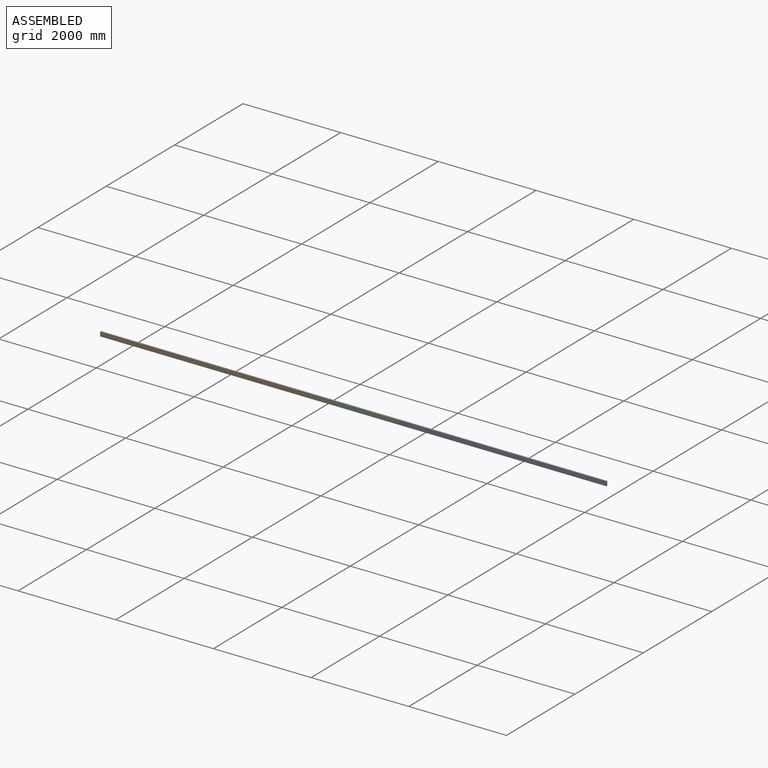
[diagram: assembled view]
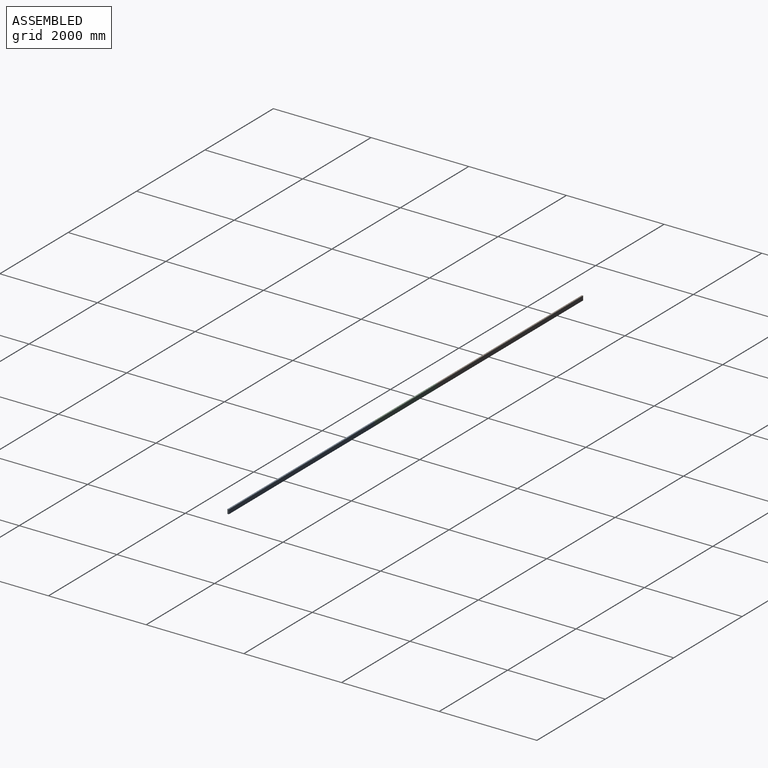
[diagram: assembled view, second angle]
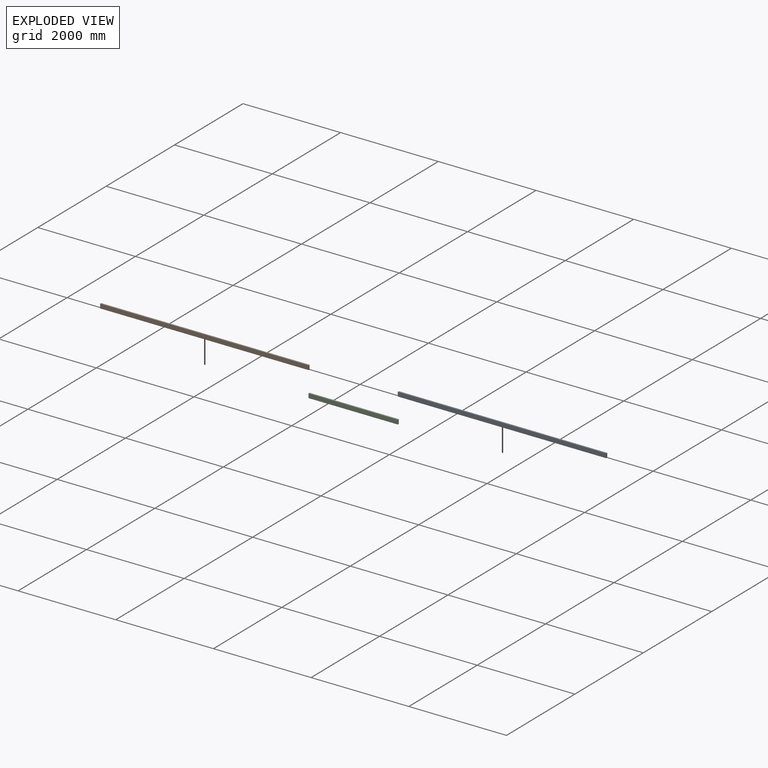
[diagram: exploded view]
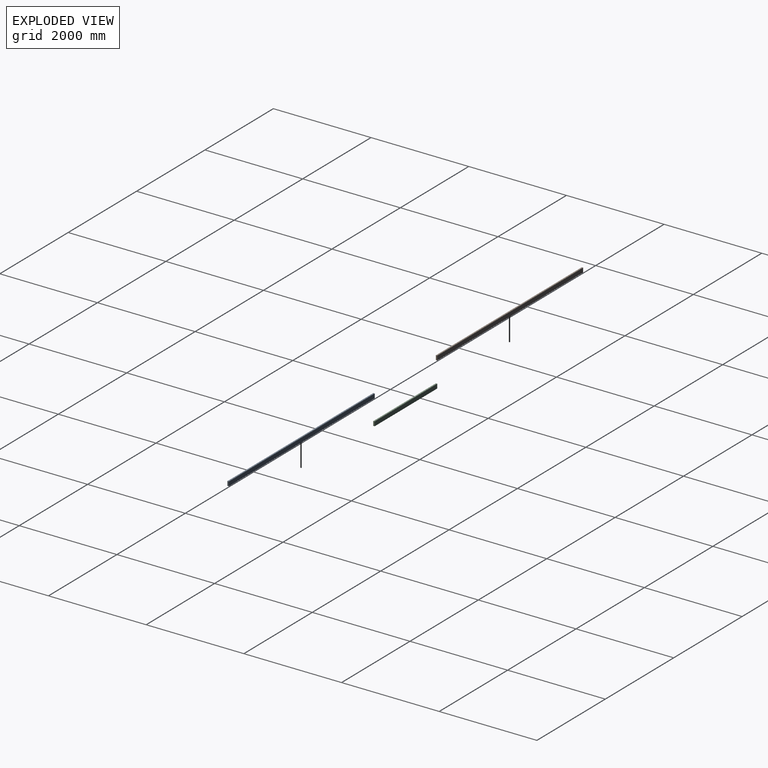
[diagram: exploded view, second angle]
ASSEMBLY  parts=3 mates=2
PART A: 6 faces, bbox 28.6x4267.2x88.9 mm
  f0: plane 4267.2x28.58mm, normal (0,0,1), area 121935.2mm2, adj f1,f3,f4,f5
  f1: plane 4267.2x88.9mm, normal (-1,0,0), area 379354.1mm2, adj f0,f2,f4,f5
  f2: plane 4267.2x28.58mm, normal (0,0,-1), area 121935.2mm2, adj f1,f3,f4,f5
  f3: plane 4267.2x88.9mm, normal (1,0,0), area 379354.1mm2, adj f0,f2,f4,f5
  f4: plane 88.9x28.58mm, normal (0,-1,0), area 2540.3mm2, adj f0,f1,f2,f3
  f5: plane 88.9x28.58mm, normal (0,1,0), area 2540.3mm2, adj f0,f1,f2,f3
PART B: same geometry as A
PART C: 6 faces, bbox 28.6x1828.8x88.9 mm
  f0: plane 1828.8x28.58mm, normal (0,0,1), area 52258mm2, adj f1,f3,f4,f5
  f1: plane 1828.8x88.9mm, normal (-1,0,0), area 162580.3mm2, adj f0,f2,f4,f5
  f2: plane 1828.8x28.58mm, normal (0,0,-1), area 52258mm2, adj f1,f3,f4,f5
  f3: plane 1828.8x88.9mm, normal (1,0,0), area 162580.3mm2, adj f0,f2,f4,f5
  f4: plane 88.9x28.58mm, normal (0,-1,0), area 2540.3mm2, adj f0,f1,f2,f3
  f5: plane 88.9x28.58mm, normal (0,1,0), area 2540.3mm2, adj f0,f1,f2,f3
PLACE A rot(axis=(0,0,1),90deg) t=(1623.38,799.52,807.7)mm
PLACE B rot(axis=(0,0,-1),90deg) t=(-205.42,799.98,807.7)mm
PLACE C rot(axis=(0,0,-1),90deg) t=(1623.38,803.47,774.57)mm
MATE fastened A.f0 <-> C.f0  axis (0,0,1) through (1623.38,785.46,827.68)mm
MATE fastened B.f0 <-> C.f0  axis (0,0,-1) through (-205.42,785.46,827.68)mm
